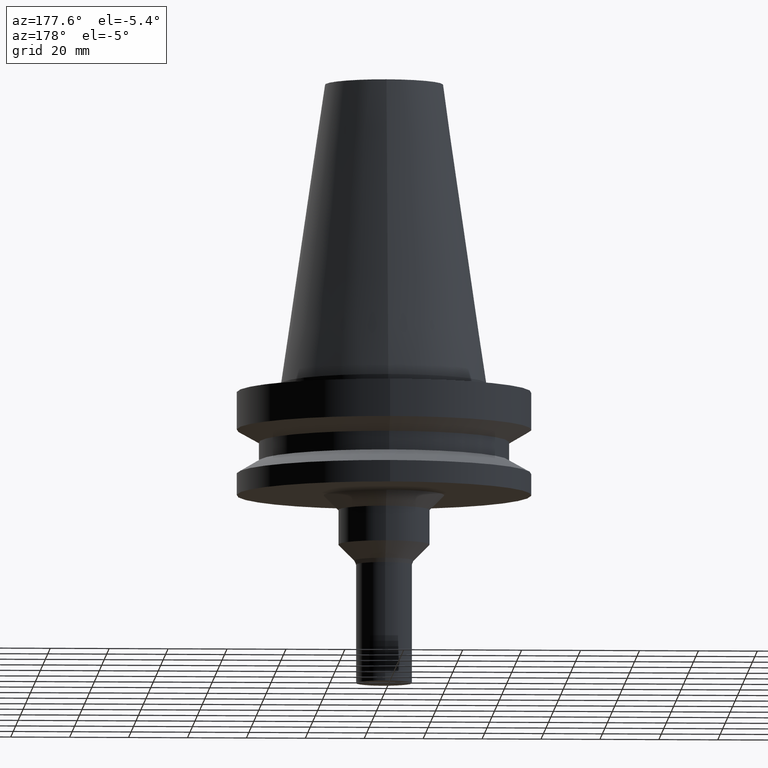
[diagram: clean part render]
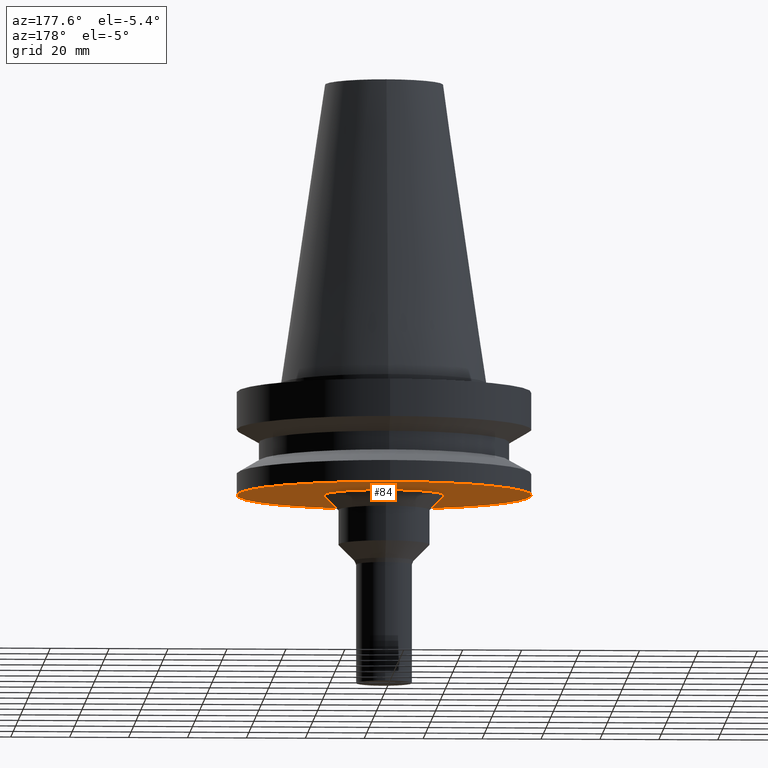
[diagram: same view with one face highlighted and labeled with its STEP entity id]
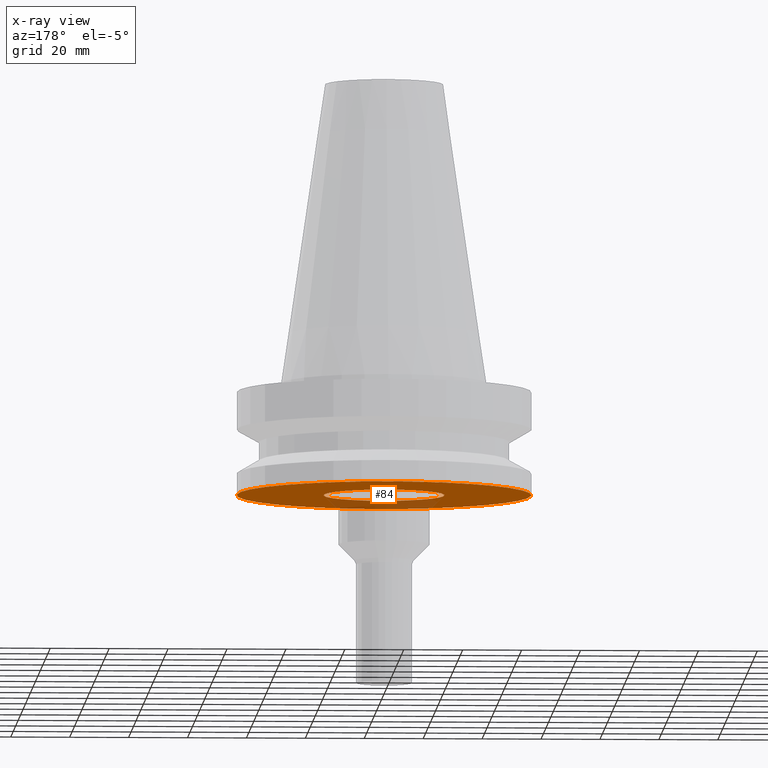
[diagram: x-ray of the same camera — body ghosted, the highlighted face saturated]
A machine part, auxiliary view. The second image highlights one B-rep face of the part: STEP entity #84.
The next image is the same camera in x-ray: the body ghosted, the highlighted face saturated — about 16% of this face is hidden behind the body in this view.
In plain terms, the highlighted planar face has unit normal (0, 0, -1).
Its self-contained STEP definition (entity closure, byte-faithful):
#84=ADVANCED_FACE('',(#118,#119),#120,.T.);
#118=FACE_BOUND('',#164,.T.);
#119=FACE_OUTER_BOUND('',#165,.T.);
#120=PLANE('',#166);
#164=EDGE_LOOP('',(#228));
#165=EDGE_LOOP('',(#229));
#166=AXIS2_PLACEMENT_3D('',#230,#231,#232);
#228=ORIENTED_EDGE('',*,*,#271,.F.);
#229=ORIENTED_EDGE('',*,*,#270,.T.);
#230=CARTESIAN_POINT('',(2.32682891837997E-015,35.25,-38.0));
#231=DIRECTION('',(6.12323399573677E-017,1.22464679914735E-016,-1.0));
#232=DIRECTION('',(-1.23259516440783E-032,1.0,1.22464679914735E-016));
#270=EDGE_CURVE('',#293,#293,#294,.T.);
#271=EDGE_CURVE('',#295,#295,#296,.T.);
#293=VERTEX_POINT('',#323);
#294=CIRCLE('',#324,50.0);
#295=VERTEX_POINT('',#325);
#296=CIRCLE('',#326,20.5);
#323=CARTESIAN_POINT('',(2.32682891837997E-015,50.0,-38.0));
#324=AXIS2_PLACEMENT_3D('',#361,#362,#363);
#325=CARTESIAN_POINT('',(2.32682891837997E-015,20.5,-38.0));
#326=AXIS2_PLACEMENT_3D('',#364,#365,#366);
#361=CARTESIAN_POINT('',(2.32682891837997E-015,4.65365783675994E-015,-38.0));
#362=DIRECTION('',(6.12323399573677E-017,1.22464679914672E-016,-1.0));
#363=DIRECTION('',(-1.23259516440783E-032,1.0,1.22464679914672E-016));
#364=CARTESIAN_POINT('',(2.32682891837997E-015,4.65365783675994E-015,-38.0));
#365=DIRECTION('',(6.12323399573677E-017,1.22464679914785E-016,-1.0));
#366=DIRECTION('',(-1.23259516440783E-032,1.0,1.22464679914785E-016));